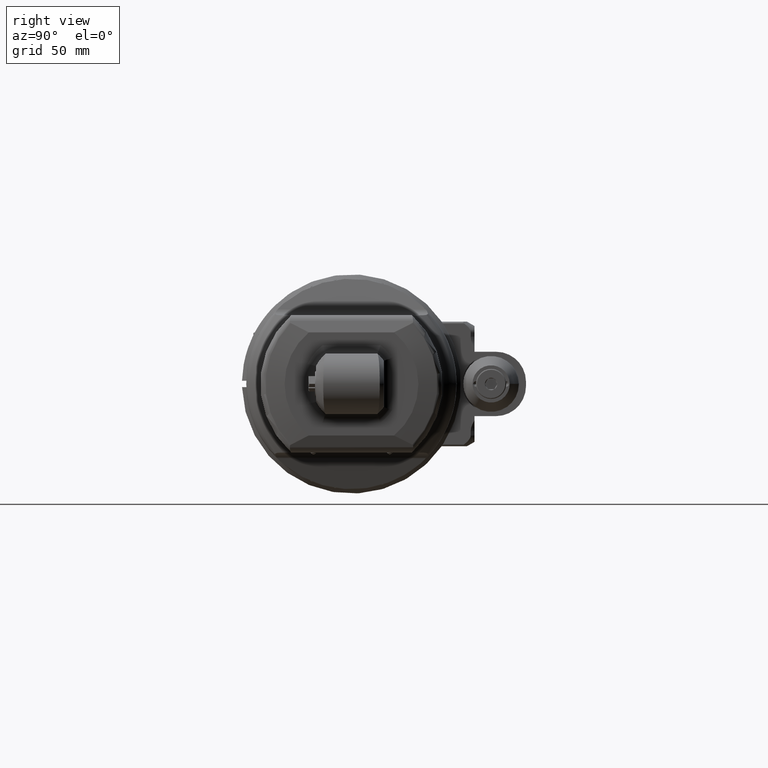
[diagram: clean part render]
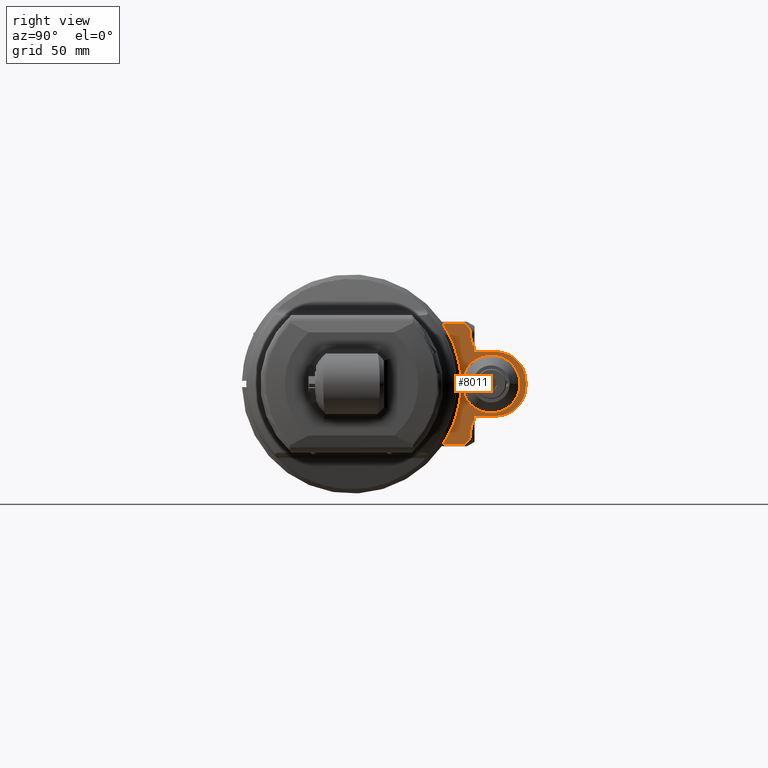
[diagram: same view with one face highlighted and labeled with its STEP entity id]
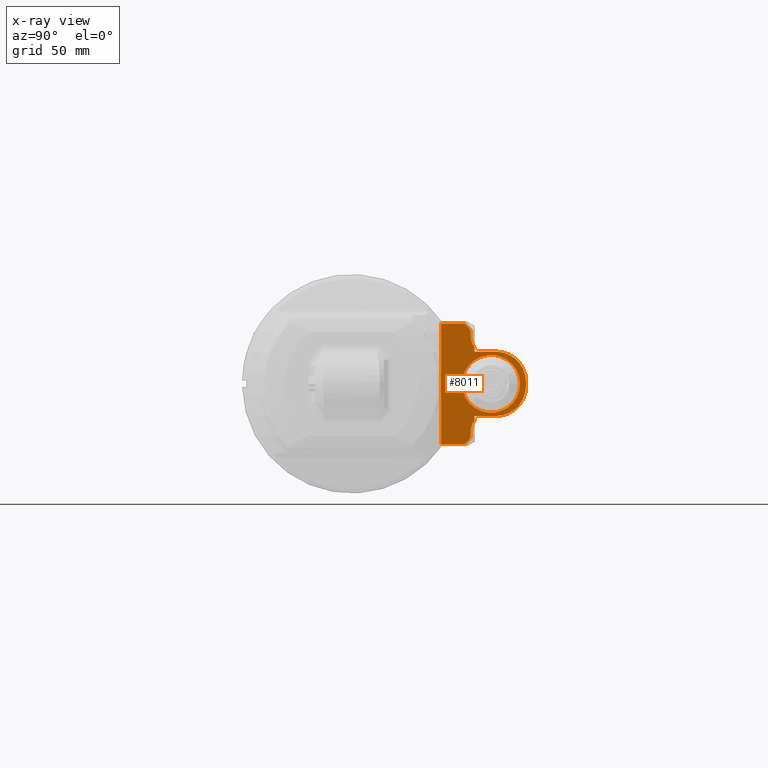
[diagram: x-ray of the same camera — body ghosted, the highlighted face saturated]
A machine part, right view. The second image highlights one B-rep face of the part: STEP entity #8011.
The next image is the same camera in x-ray: the body ghosted, the highlighted face saturated — about 1% of this face is hidden behind the body in this view.
In plain terms, the highlighted planar face has unit normal (-1, 0, 0).
Its self-contained STEP definition (entity closure, byte-faithful):
#102=FACE_BOUND('',#1175,.T.);
#175=(
BOUNDED_CURVE()
B_SPLINE_CURVE(2,(#12374,#12375,#12376),.UNSPECIFIED.,.F.,.F.)
B_SPLINE_CURVE_WITH_KNOTS((3,3),(-4.80050213228872,-3.63760015971074),
 .UNSPECIFIED.)
CURVE()
GEOMETRIC_REPRESENTATION_ITEM()
RATIONAL_B_SPLINE_CURVE((1.57735025800116,1.64307315092241,1.64307315092241))
REPRESENTATION_ITEM('')
);
#176=(
BOUNDED_CURVE()
B_SPLINE_CURVE(2,(#12392,#12393,#12394),.UNSPECIFIED.,.F.,.F.)
B_SPLINE_CURVE_WITH_KNOTS((3,3),(-3.63760015971074,-2.47469818713276),
 .UNSPECIFIED.)
CURVE()
GEOMETRIC_REPRESENTATION_ITEM()
RATIONAL_B_SPLINE_CURVE((1.64307315092241,1.64307315092241,1.57735025800116))
REPRESENTATION_ITEM('')
);
#177=(
BOUNDED_CURVE()
B_SPLINE_CURVE(2,(#12398,#12399,#12400),.UNSPECIFIED.,.F.,.F.)
B_SPLINE_CURVE_WITH_KNOTS((3,3),(0.802084003550109,1.89472960778239),
 .UNSPECIFIED.)
CURVE()
GEOMETRIC_REPRESENTATION_ITEM()
RATIONAL_B_SPLINE_CURVE((1.71135239382398,2.06578511985151,2.06578511985151))
REPRESENTATION_ITEM('')
);
#178=(
BOUNDED_CURVE()
B_SPLINE_CURVE(2,(#12405,#12406,#12407),.UNSPECIFIED.,.F.,.F.)
B_SPLINE_CURVE_WITH_KNOTS((3,3),(1.89472960778249,2.98737521183054),
 .UNSPECIFIED.)
CURVE()
GEOMETRIC_REPRESENTATION_ITEM()
RATIONAL_B_SPLINE_CURVE((2.06578511985158,2.06578511985158,1.71135239394358))
REPRESENTATION_ITEM('')
);
#315=PLANE('',#8623);
#671=FACE_OUTER_BOUND('',#1174,.T.);
#1174=EDGE_LOOP('',(#5732,#5733,#5734,#5735,#5736,#5737,#5738,#5739,#5740,
#5741,#5742,#5743,#5744,#5745,#5746,#5747));
#1175=EDGE_LOOP('',(#5748));
#1706=CIRCLE('',#8624,0.551181102362205);
#1707=CIRCLE('',#8625,0.551181102362205);
#1708=CIRCLE('',#8626,0.531496062992126);
#2252=LINE('',#12340,#2834);
#2261=LINE('',#12378,#2843);
#2262=LINE('',#12380,#2844);
#2263=LINE('',#12384,#2845);
#2264=LINE('',#12388,#2846);
#2265=LINE('',#12390,#2847);
#2266=LINE('',#12396,#2848);
#2267=LINE('',#12401,#2849);
#2268=LINE('',#12403,#2850);
#2269=LINE('',#12408,#2851);
#2834=VECTOR('',#9698,2.20472440944882);
#2843=VECTOR('',#9725,0.0787402123472047);
#2844=VECTOR('',#9726,0.393700787401575);
#2845=VECTOR('',#9729,0.078740157480315);
#2846=VECTOR('',#9732,0.393700787401575);
#2847=VECTOR('',#9733,0.0787402123472047);
#2848=VECTOR('',#9734,0.078740157480315);
#2849=VECTOR('',#9735,0.42906276821378);
#2850=VECTOR('',#9736,0.429062768258661);
#2851=VECTOR('',#9737,0.078740157480315);
#3446=VERTEX_POINT('',#12338);
#3447=VERTEX_POINT('',#12339);
#3462=VERTEX_POINT('',#12372);
#3463=VERTEX_POINT('',#12373);
#3464=VERTEX_POINT('',#12377);
#3465=VERTEX_POINT('',#12379);
#3466=VERTEX_POINT('',#12381);
#3467=VERTEX_POINT('',#12383);
#3468=VERTEX_POINT('',#12385);
#3469=VERTEX_POINT('',#12387);
#3470=VERTEX_POINT('',#12389);
#3471=VERTEX_POINT('',#12391);
#3472=VERTEX_POINT('',#12395);
#3473=VERTEX_POINT('',#12397);
#3474=VERTEX_POINT('',#12402);
#3475=VERTEX_POINT('',#12404);
#3476=VERTEX_POINT('',#12409);
#4314=EDGE_CURVE('',#3446,#3447,#2252,.T.);
#4331=EDGE_CURVE('',#3462,#3463,#175,.T.);
#4332=EDGE_CURVE('',#3462,#3464,#2261,.T.);
#4333=EDGE_CURVE('',#3465,#3464,#2262,.T.);
#4334=EDGE_CURVE('',#3465,#3466,#1706,.T.);
#4335=EDGE_CURVE('',#3466,#3467,#2263,.T.);
#4336=EDGE_CURVE('',#3467,#3468,#1707,.T.);
#4337=EDGE_CURVE('',#3469,#3468,#2264,.T.);
#4338=EDGE_CURVE('',#3470,#3469,#2265,.T.);
#4339=EDGE_CURVE('',#3471,#3470,#176,.T.);
#4340=EDGE_CURVE('',#3472,#3471,#2266,.T.);
#4341=EDGE_CURVE('',#3473,#3472,#177,.T.);
#4342=EDGE_CURVE('',#3447,#3473,#2267,.T.);
#4343=EDGE_CURVE('',#3474,#3446,#2268,.T.);
#4344=EDGE_CURVE('',#3475,#3474,#178,.T.);
#4345=EDGE_CURVE('',#3475,#3463,#2269,.T.);
#4346=EDGE_CURVE('',#3476,#3476,#1708,.T.);
#5732=ORIENTED_EDGE('',*,*,#4331,.F.);
#5733=ORIENTED_EDGE('',*,*,#4332,.T.);
#5734=ORIENTED_EDGE('',*,*,#4333,.F.);
#5735=ORIENTED_EDGE('',*,*,#4334,.T.);
#5736=ORIENTED_EDGE('',*,*,#4335,.T.);
#5737=ORIENTED_EDGE('',*,*,#4336,.T.);
#5738=ORIENTED_EDGE('',*,*,#4337,.F.);
#5739=ORIENTED_EDGE('',*,*,#4338,.F.);
#5740=ORIENTED_EDGE('',*,*,#4339,.F.);
#5741=ORIENTED_EDGE('',*,*,#4340,.F.);
#5742=ORIENTED_EDGE('',*,*,#4341,.F.);
#5743=ORIENTED_EDGE('',*,*,#4342,.F.);
#5744=ORIENTED_EDGE('',*,*,#4314,.F.);
#5745=ORIENTED_EDGE('',*,*,#4343,.F.);
#5746=ORIENTED_EDGE('',*,*,#4344,.F.);
#5747=ORIENTED_EDGE('',*,*,#4345,.T.);
#5748=ORIENTED_EDGE('',*,*,#4346,.T.);
#8011=ADVANCED_FACE('',(#671,#102),#315,.F.);
#8623=AXIS2_PLACEMENT_3D('',#12371,#9723,#9724);
#8624=AXIS2_PLACEMENT_3D('',#12382,#9727,#9728);
#8625=AXIS2_PLACEMENT_3D('',#12386,#9730,#9731);
#8626=AXIS2_PLACEMENT_3D('',#12410,#9738,#9739);
#9698=DIRECTION('',(0.,0.,1.));
#9723=DIRECTION('center_axis',(-1.,0.,0.));
#9724=DIRECTION('ref_axis',(0.,-1.,0.));
#9725=DIRECTION('',(2.131626721942E-13,0.,1.));
#9726=DIRECTION('',(0.,-1.,0.));
#9727=DIRECTION('center_axis',(1.,0.,0.));
#9728=DIRECTION('ref_axis',(0.,0.,-1.));
#9729=DIRECTION('',(0.,0.,1.));
#9730=DIRECTION('center_axis',(1.,0.,0.));
#9731=DIRECTION('ref_axis',(0.,1.,0.));
#9732=DIRECTION('',(0.,1.,0.));
#9733=DIRECTION('',(2.131626721942E-13,0.,-1.));
#9734=DIRECTION('',(0.,-2.84217094304E-14,-1.));
#9735=DIRECTION('',(-6.713915828753E-11,1.,1.193516107229E-9));
#9736=DIRECTION('',(6.203022672988E-11,-1.,1.102705435575E-9));
#9737=DIRECTION('',(0.,-2.84217094304E-14,1.));
#9738=DIRECTION('center_axis',(-1.,0.,0.));
#9739=DIRECTION('ref_axis',(0.,1.,0.));
#12338=CARTESIAN_POINT('',(-0.669291338582677,1.64370078740157,-1.10236220472441));
#12339=CARTESIAN_POINT('',(-0.669291338582677,1.64370078740157,1.10236220472441));
#12340=CARTESIAN_POINT('',(-0.669291338582677,1.64370078740157,-1.10236220472441));
#12371=CARTESIAN_POINT('Origin',(-0.669291338582677,1.60433070866142,0.));
#12372=CARTESIAN_POINT('',(-0.669291338582677,2.25393700787402,-0.669291393449606));
#12373=CARTESIAN_POINT('',(-0.669291338582677,2.18574606423543,-0.866141741372047));
#12374=CARTESIAN_POINT('Ctrl Pts',(-0.669291338582677,2.25393700787382,
-0.669291393449726));
#12375=CARTESIAN_POINT('Ctrl Pts',(-0.669291338582677,2.18574606423561,
-0.771653572385603));
#12376=CARTESIAN_POINT('Ctrl Pts',(-0.669291338582677,2.18574606423561,
-0.866141741372047));
#12377=CARTESIAN_POINT('',(-0.669291338582677,2.25393700787402,-0.590551181102362));
#12378=CARTESIAN_POINT('',(-0.669291338582677,2.25393700787402,-0.669291393449606));
#12379=CARTESIAN_POINT('',(-0.669291338582677,2.64763779527559,-0.590551181102362));
#12380=CARTESIAN_POINT('',(-0.669291338582677,2.64763779527559,-0.590551181102362));
#12381=CARTESIAN_POINT('',(-0.669291338582677,3.19881889763779,-0.0393700787401575));
#12382=CARTESIAN_POINT('Origin',(-0.669291338582677,2.64763779527559,-0.0393700787401575));
#12383=CARTESIAN_POINT('',(-0.669291338582677,3.19881889763779,0.0393700787401575));
#12384=CARTESIAN_POINT('',(-0.669291338582677,3.19881889763779,-0.0393700787401575));
#12385=CARTESIAN_POINT('',(-0.669291338582677,2.64763779527559,0.590551181102362));
#12386=CARTESIAN_POINT('Origin',(-0.669291338582677,2.64763779527559,0.0393700787401575));
#12387=CARTESIAN_POINT('',(-0.669291338582677,2.25393700787402,0.590551181102362));
#12388=CARTESIAN_POINT('',(-0.669291338582677,2.25393700787402,0.590551181102362));
#12389=CARTESIAN_POINT('',(-0.669291338582677,2.25393700787402,0.669291393449606));
#12390=CARTESIAN_POINT('',(-0.669291338582677,2.25393700787402,0.669291393449606));
#12391=CARTESIAN_POINT('',(-0.669291338582677,2.18574606423543,0.866141741372047));
#12392=CARTESIAN_POINT('Ctrl Pts',(-0.669291338582677,2.18574606423561,
0.866141741372047));
#12393=CARTESIAN_POINT('Ctrl Pts',(-0.669291338582677,2.18574606423561,
0.771653572385602));
#12394=CARTESIAN_POINT('Ctrl Pts',(-0.669291338582677,2.25393700787382,
0.669291393449725));
#12395=CARTESIAN_POINT('',(-0.669291338582677,2.18574606423543,0.944881898852362));
#12396=CARTESIAN_POINT('',(-0.669291338582677,2.18574606423543,0.944881898852362));
#12397=CARTESIAN_POINT('',(-0.669291338611417,2.07276355561535,1.10236220523661));
#12398=CARTESIAN_POINT('Ctrl Pts',(-0.669291338582677,2.07276355560129,
1.10236220521939));
#12399=CARTESIAN_POINT('Ctrl Pts',(-0.669291338582677,2.18574606423525,
1.01011237628477));
#12400=CARTESIAN_POINT('Ctrl Pts',(-0.669291338582677,2.18574606423525,
0.944881898852361));
#12401=CARTESIAN_POINT('',(-0.669291338582677,1.64370078740157,1.10236220472441));
#12402=CARTESIAN_POINT('',(-0.669291338609449,2.07276355566024,-1.10236220519764));
#12403=CARTESIAN_POINT('',(-0.669291338609449,2.07276355566024,-1.10236220519764));
#12404=CARTESIAN_POINT('',(-0.669291338582677,2.18574606423543,-0.944881898852362));
#12405=CARTESIAN_POINT('Ctrl Pts',(-0.669291338582677,2.18574606423528,
-0.944881898852362));
#12406=CARTESIAN_POINT('Ctrl Pts',(-0.669291338582677,2.18574606423528,
-1.01011237627377));
#12407=CARTESIAN_POINT('Ctrl Pts',(-0.669291338582677,2.07276355564733,
-1.10236220518183));
#12408=CARTESIAN_POINT('',(-0.669291338582677,2.18574606423543,-0.944881898852362));
#12409=CARTESIAN_POINT('',(-0.669291338582677,2.02755905511811,0.));
#12410=CARTESIAN_POINT('Origin',(-0.669291338582677,2.55905511811024,0.));